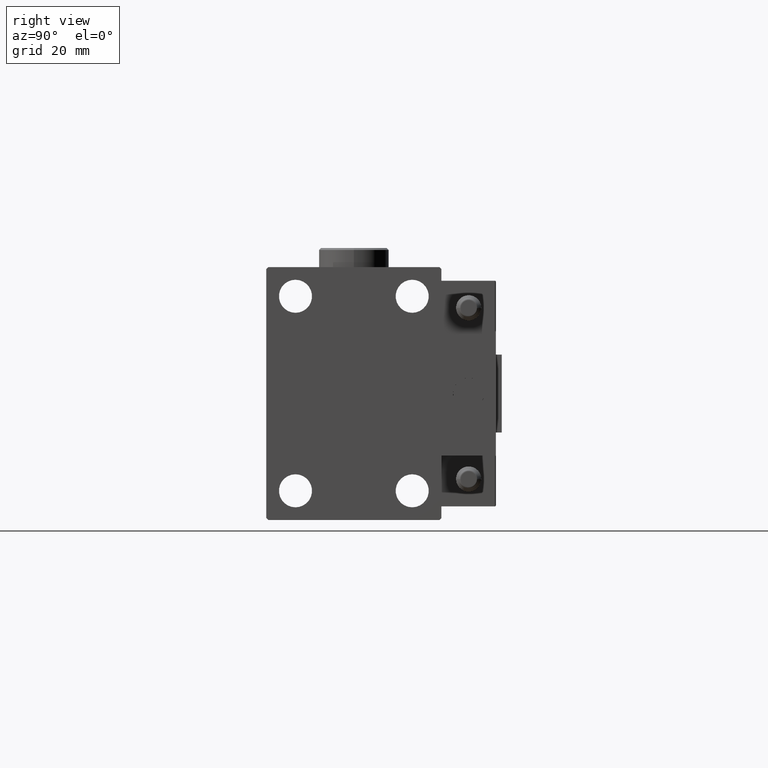
[diagram: clean part render]
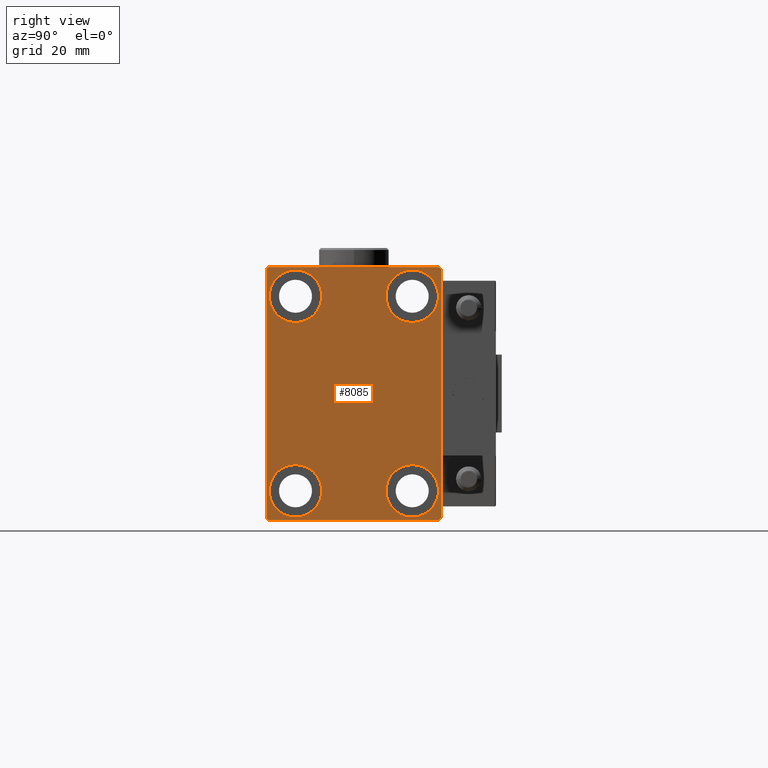
[diagram: same view with one face highlighted and labeled with its STEP entity id]
A machine part, right view. The second image highlights one B-rep face of the part: STEP entity #8085.
In plain terms, the highlighted planar face has unit normal (1, 0, 0).
Its self-contained STEP definition (entity closure, byte-faithful):
#540 = DIRECTION ( 'NONE',  ( -1.000000000000000000, -0.000000000000000000, -0.000000000000000000 ) ) ;
#943 = CARTESIAN_POINT ( 'NONE',  ( 70.00000000000000000, -14.99999999999999645, 25.00000000000000000 ) ) ;
#1895 = CIRCLE ( 'NONE', #32825, 6.749999999999999112 ) ;
#2097 = CARTESIAN_POINT ( 'NONE',  ( 70.00000000000000000, 15.00000000000000355, 31.75000000000000000 ) ) ;
#2506 = ORIENTED_EDGE ( 'NONE', *, *, #32193, .T. ) ;
#3344 = VECTOR ( 'NONE', #7787, 1000.000000000000114 ) ;
#3856 = LINE ( 'NONE', #31865, #3344 ) ;
#3911 = VECTOR ( 'NONE', #5823, 1000.000000000000000 ) ;
#4410 = EDGE_CURVE ( 'NONE', #40969, #31526, #42131, .T. ) ;
#4916 = VERTEX_POINT ( 'NONE', #42532 ) ;
#5056 = CARTESIAN_POINT ( 'NONE',  ( 70.00000000000000000, 15.00000000000000355, 18.25000000000000355 ) ) ;
#5305 = LINE ( 'NONE', #45121, #17290 ) ;
#5607 = VECTOR ( 'NONE', #12436, 999.9999999999998863 ) ;
#5823 = DIRECTION ( 'NONE',  ( 0.000000000000000000, -1.067522139062650425E-16, 1.000000000000000000 ) ) ;
#5961 = AXIS2_PLACEMENT_3D ( 'NONE', #31199, #47199, #15481 ) ;
#5968 = VERTEX_POINT ( 'NONE', #2097 ) ;
#5991 = AXIS2_PLACEMENT_3D ( 'NONE', #19751, #51189, #39930 ) ;
#6275 = AXIS2_PLACEMENT_3D ( 'NONE', #35734, #15305, #15037 ) ;
#6522 = ORIENTED_EDGE ( 'NONE', *, *, #12087, .T. ) ;
#6614 = EDGE_CURVE ( 'NONE', #50833, #28700, #1895, .T. ) ;
#7395 = FACE_OUTER_BOUND ( 'NONE', #42188, .T. ) ;
#7419 = CARTESIAN_POINT ( 'NONE',  ( 70.00000000000000000, -15.00000000000000355, -18.25000000000000355 ) ) ;
#7654 = FACE_BOUND ( 'NONE', #42123, .T. ) ;
#7787 = DIRECTION ( 'NONE',  ( 0.000000000000000000, -0.7071067811865474617, -0.7071067811865474617 ) ) ;
#8069 = CIRCLE ( 'NONE', #37337, 6.749999999999999112 ) ;
#8085 = ADVANCED_FACE ( 'NONE', ( #15768, #43304, #27319, #7654, #7395 ), #51145, .T. ) ;
#8209 = ORIENTED_EDGE ( 'NONE', *, *, #19655, .T. ) ;
#8800 = CIRCLE ( 'NONE', #6275, 6.749999999999999112 ) ;
#8802 = DIRECTION ( 'NONE',  ( 0.000000000000000000, 0.000000000000000000, 1.000000000000000000 ) ) ;
#8849 = DIRECTION ( 'NONE',  ( 0.000000000000000000, 0.000000000000000000, 1.000000000000000000 ) ) ;
#9502 = EDGE_CURVE ( 'NONE', #22967, #44159, #36325, .T. ) ;
#11345 = CARTESIAN_POINT ( 'NONE',  ( 70.00000000000000000, -21.99999999999999289, 32.49999999999999289 ) ) ;
#11395 = CIRCLE ( 'NONE', #15522, 6.749999999999999112 ) ;
#11871 = VERTEX_POINT ( 'NONE', #51543 ) ;
#12087 = EDGE_CURVE ( 'NONE', #23978, #12601, #8800, .T. ) ;
#12436 = DIRECTION ( 'NONE',  ( -0.000000000000000000, -0.7071067811865425767, 0.7071067811865525687 ) ) ;
#12601 = VERTEX_POINT ( 'NONE', #21268 ) ;
#13409 = EDGE_CURVE ( 'NONE', #25131, #30834, #5305, .T. ) ;
#14935 = CARTESIAN_POINT ( 'NONE',  ( 70.00000000000000000, -22.50000000000000711, 31.99999999999999289 ) ) ;
#15037 = DIRECTION ( 'NONE',  ( 0.000000000000000000, 0.000000000000000000, 1.000000000000000000 ) ) ;
#15305 = DIRECTION ( 'NONE',  ( -1.000000000000000000, -0.000000000000000000, -0.000000000000000000 ) ) ;
#15307 = CARTESIAN_POINT ( 'NONE',  ( 70.00000000000000000, -22.50000000000000711, -32.00000000000000711 ) ) ;
#15481 = DIRECTION ( 'NONE',  ( 0.000000000000000000, 0.000000000000000000, 1.000000000000000000 ) ) ;
#15522 = AXIS2_PLACEMENT_3D ( 'NONE', #48096, #28692, #8802 ) ;
#15768 = FACE_BOUND ( 'NONE', #40170, .T. ) ;
#16620 = CARTESIAN_POINT ( 'NONE',  ( 70.00000000000000000, 27.25000000000014921, 27.24999999999976907 ) ) ;
#17068 = EDGE_CURVE ( 'NONE', #44159, #11871, #19600, .T. ) ;
#17192 = LINE ( 'NONE', #36813, #33189 ) ;
#17238 = ORIENTED_EDGE ( 'NONE', *, *, #17068, .T. ) ;
#17290 = VECTOR ( 'NONE', #21274, 1000.000000000000114 ) ;
#17662 = EDGE_CURVE ( 'NONE', #33703, #5968, #11395, .T. ) ;
#17912 = VECTOR ( 'NONE', #49178, 1000.000000000000000 ) ;
#19600 = LINE ( 'NONE', #35303, #33121 ) ;
#19655 = EDGE_CURVE ( 'NONE', #4916, #45435, #17192, .T. ) ;
#19751 = CARTESIAN_POINT ( 'NONE',  ( 70.00000000000000000, -15.00000000000000355, -25.00000000000000000 ) ) ;
#20997 = AXIS2_PLACEMENT_3D ( 'NONE', #45475, #32165, #48175 ) ;
#21268 = CARTESIAN_POINT ( 'NONE',  ( 70.00000000000000000, 14.99999999999999645, -18.25000000000000355 ) ) ;
#21274 = DIRECTION ( 'NONE',  ( -0.000000000000000000, 0.7071067811865376918, 0.7071067811865573427 ) ) ;
#21398 = ORIENTED_EDGE ( 'NONE', *, *, #17662, .T. ) ;
#21509 = CARTESIAN_POINT ( 'NONE',  ( 70.00000000000000000, -15.00000000000000355, -25.00000000000000000 ) ) ;
#21539 = CARTESIAN_POINT ( 'NONE',  ( 70.00000000000000000, 22.50000000000000000, -32.00000000000002132 ) ) ;
#21816 = EDGE_CURVE ( 'NONE', #28700, #50833, #8069, .T. ) ;
#21857 = CIRCLE ( 'NONE', #5961, 6.749999999999999112 ) ;
#22032 = DIRECTION ( 'NONE',  ( 0.000000000000000000, 0.000000000000000000, 1.000000000000000000 ) ) ;
#22038 = AXIS2_PLACEMENT_3D ( 'NONE', #21509, #37480, #22032 ) ;
#22099 = EDGE_CURVE ( 'NONE', #30884, #4916, #48583, .T. ) ;
#22450 = ORIENTED_EDGE ( 'NONE', *, *, #29938, .T. ) ;
#22702 = VECTOR ( 'NONE', #38177, 1000.000000000000000 ) ;
#22912 = EDGE_CURVE ( 'NONE', #30834, #30884, #25741, .T. ) ;
#22967 = VERTEX_POINT ( 'NONE', #14935 ) ;
#23382 = DIRECTION ( 'NONE',  ( 1.000000000000000000, 0.000000000000000000, 0.000000000000000000 ) ) ;
#23978 = VERTEX_POINT ( 'NONE', #28574 ) ;
#24407 = CARTESIAN_POINT ( 'NONE',  ( 70.00000000000000000, -15.00000000000000355, -31.75000000000000000 ) ) ;
#25131 = VERTEX_POINT ( 'NONE', #41112 ) ;
#25279 = ORIENTED_EDGE ( 'NONE', *, *, #33371, .T. ) ;
#25590 = EDGE_LOOP ( 'NONE', ( #33320, #32309 ) ) ;
#25741 = LINE ( 'NONE', #41728, #3911 ) ;
#27059 = DIRECTION ( 'NONE',  ( 0.000000000000000000, 0.000000000000000000, -1.000000000000000000 ) ) ;
#27319 = FACE_BOUND ( 'NONE', #41240, .T. ) ;
#28574 = CARTESIAN_POINT ( 'NONE',  ( 70.00000000000000000, 14.99999999999999645, -31.75000000000000000 ) ) ;
#28692 = DIRECTION ( 'NONE',  ( -1.000000000000000000, -0.000000000000000000, -0.000000000000000000 ) ) ;
#28700 = VERTEX_POINT ( 'NONE', #34290 ) ;
#29247 = CARTESIAN_POINT ( 'NONE',  ( 70.00000000000000000, -22.50000000000000711, 32.49999999999999289 ) ) ;
#29325 = CIRCLE ( 'NONE', #20997, 6.749999999999999112 ) ;
#29552 = LINE ( 'NONE', #33982, #22702 ) ;
#29938 = EDGE_CURVE ( 'NONE', #45435, #22967, #3856, .T. ) ;
#30166 = ORIENTED_EDGE ( 'NONE', *, *, #22099, .T. ) ;
#30176 = ORIENTED_EDGE ( 'NONE', *, *, #47369, .T. ) ;
#30634 = ORIENTED_EDGE ( 'NONE', *, *, #13409, .T. ) ;
#30834 = VERTEX_POINT ( 'NONE', #21539 ) ;
#30884 = VERTEX_POINT ( 'NONE', #31632 ) ;
#30953 = ORIENTED_EDGE ( 'NONE', *, *, #22912, .T. ) ;
#31199 = CARTESIAN_POINT ( 'NONE',  ( 70.00000000000000000, 14.99999999999999645, -25.00000000000000000 ) ) ;
#31526 = VERTEX_POINT ( 'NONE', #7419 ) ;
#31632 = CARTESIAN_POINT ( 'NONE',  ( 70.00000000000000000, 22.49999999999999289, 31.99999999999999289 ) ) ;
#31865 = CARTESIAN_POINT ( 'NONE',  ( 70.00000000000000000, -27.25000000000000000, 27.25000000000000000 ) ) ;
#32165 = DIRECTION ( 'NONE',  ( -1.000000000000000000, -0.000000000000000000, -0.000000000000000000 ) ) ;
#32193 = EDGE_CURVE ( 'NONE', #5968, #33703, #29325, .T. ) ;
#32309 = ORIENTED_EDGE ( 'NONE', *, *, #21816, .T. ) ;
#32783 = EDGE_CURVE ( 'NONE', #12601, #23978, #21857, .T. ) ;
#32825 = AXIS2_PLACEMENT_3D ( 'NONE', #36436, #540, #39874 ) ;
#33121 = VECTOR ( 'NONE', #43450, 1000.000000000000000 ) ;
#33189 = VECTOR ( 'NONE', #44188, 1000.000000000000000 ) ;
#33320 = ORIENTED_EDGE ( 'NONE', *, *, #6614, .T. ) ;
#33371 = EDGE_CURVE ( 'NONE', #11871, #25131, #29552, .T. ) ;
#33703 = VERTEX_POINT ( 'NONE', #5056 ) ;
#33982 = CARTESIAN_POINT ( 'NONE',  ( 70.00000000000000000, -22.50000000000000711, -32.50000000000000711 ) ) ;
#34290 = CARTESIAN_POINT ( 'NONE',  ( 70.00000000000000000, -14.99999999999999645, 31.75000000000000000 ) ) ;
#35303 = CARTESIAN_POINT ( 'NONE',  ( 70.00000000000000000, -27.25000000000032330, -27.24999999999957012 ) ) ;
#35389 = AXIS2_PLACEMENT_3D ( 'NONE', #47744, #23382, #27059 ) ;
#35734 = CARTESIAN_POINT ( 'NONE',  ( 70.00000000000000000, 14.99999999999999645, -25.00000000000000000 ) ) ;
#36325 = LINE ( 'NONE', #29247, #17912 ) ;
#36436 = CARTESIAN_POINT ( 'NONE',  ( 70.00000000000000000, -14.99999999999999645, 25.00000000000000000 ) ) ;
#36813 = CARTESIAN_POINT ( 'NONE',  ( 70.00000000000000000, 22.49999999999999289, 32.50000000000000000 ) ) ;
#37337 = AXIS2_PLACEMENT_3D ( 'NONE', #943, #44471, #8849 ) ;
#37480 = DIRECTION ( 'NONE',  ( -1.000000000000000000, -0.000000000000000000, -0.000000000000000000 ) ) ;
#38177 = DIRECTION ( 'NONE',  ( 0.000000000000000000, 1.000000000000000000, 0.000000000000000000 ) ) ;
#39256 = CARTESIAN_POINT ( 'NONE',  ( 70.00000000000000000, -14.99999999999999645, 18.25000000000000355 ) ) ;
#39874 = DIRECTION ( 'NONE',  ( 0.000000000000000000, 0.000000000000000000, 1.000000000000000000 ) ) ;
#39930 = DIRECTION ( 'NONE',  ( 0.000000000000000000, 0.000000000000000000, 1.000000000000000000 ) ) ;
#40170 = EDGE_LOOP ( 'NONE', ( #6522, #42885 ) ) ;
#40969 = VERTEX_POINT ( 'NONE', #24407 ) ;
#41112 = CARTESIAN_POINT ( 'NONE',  ( 70.00000000000000000, 22.00000000000001421, -32.50000000000000711 ) ) ;
#41125 = CIRCLE ( 'NONE', #5991, 6.749999999999999112 ) ;
#41240 = EDGE_LOOP ( 'NONE', ( #21398, #2506 ) ) ;
#41597 = ORIENTED_EDGE ( 'NONE', *, *, #4410, .T. ) ;
#41728 = CARTESIAN_POINT ( 'NONE',  ( 70.00000000000000000, 22.50000000000000000, -32.50000000000000711 ) ) ;
#42123 = EDGE_LOOP ( 'NONE', ( #41597, #30176 ) ) ;
#42131 = CIRCLE ( 'NONE', #22038, 6.749999999999999112 ) ;
#42188 = EDGE_LOOP ( 'NONE', ( #8209, #22450, #47466, #17238, #25279, #30634, #30953, #30166 ) ) ;
#42532 = CARTESIAN_POINT ( 'NONE',  ( 70.00000000000000000, 21.99999999999999289, 32.50000000000000000 ) ) ;
#42885 = ORIENTED_EDGE ( 'NONE', *, *, #32783, .T. ) ;
#43304 = FACE_BOUND ( 'NONE', #25590, .T. ) ;
#43450 = DIRECTION ( 'NONE',  ( -0.000000000000000000, 0.7071067811865378028, -0.7071067811865573427 ) ) ;
#44159 = VERTEX_POINT ( 'NONE', #15307 ) ;
#44188 = DIRECTION ( 'NONE',  ( 0.000000000000000000, -1.000000000000000000, -1.541976423090495387E-16 ) ) ;
#44471 = DIRECTION ( 'NONE',  ( -1.000000000000000000, -0.000000000000000000, -0.000000000000000000 ) ) ;
#45121 = CARTESIAN_POINT ( 'NONE',  ( 70.00000000000000000, 27.25000000000032685, -27.24999999999957012 ) ) ;
#45435 = VERTEX_POINT ( 'NONE', #11345 ) ;
#45475 = CARTESIAN_POINT ( 'NONE',  ( 70.00000000000000000, 15.00000000000000355, 25.00000000000000000 ) ) ;
#47199 = DIRECTION ( 'NONE',  ( -1.000000000000000000, -0.000000000000000000, -0.000000000000000000 ) ) ;
#47369 = EDGE_CURVE ( 'NONE', #31526, #40969, #41125, .T. ) ;
#47466 = ORIENTED_EDGE ( 'NONE', *, *, #9502, .T. ) ;
#47744 = CARTESIAN_POINT ( 'NONE',  ( 70.00000000000000000, 0.000000000000000000, 0.000000000000000000 ) ) ;
#48096 = CARTESIAN_POINT ( 'NONE',  ( 70.00000000000000000, 15.00000000000000355, 25.00000000000000000 ) ) ;
#48175 = DIRECTION ( 'NONE',  ( 0.000000000000000000, 0.000000000000000000, 1.000000000000000000 ) ) ;
#48583 = LINE ( 'NONE', #16620, #5607 ) ;
#49178 = DIRECTION ( 'NONE',  ( 0.000000000000000000, 0.000000000000000000, -1.000000000000000000 ) ) ;
#50833 = VERTEX_POINT ( 'NONE', #39256 ) ;
#51145 = PLANE ( 'NONE',  #35389 ) ;
#51189 = DIRECTION ( 'NONE',  ( -1.000000000000000000, -0.000000000000000000, -0.000000000000000000 ) ) ;
#51543 = CARTESIAN_POINT ( 'NONE',  ( 70.00000000000000000, -22.00000000000002132, -32.50000000000000711 ) ) ;